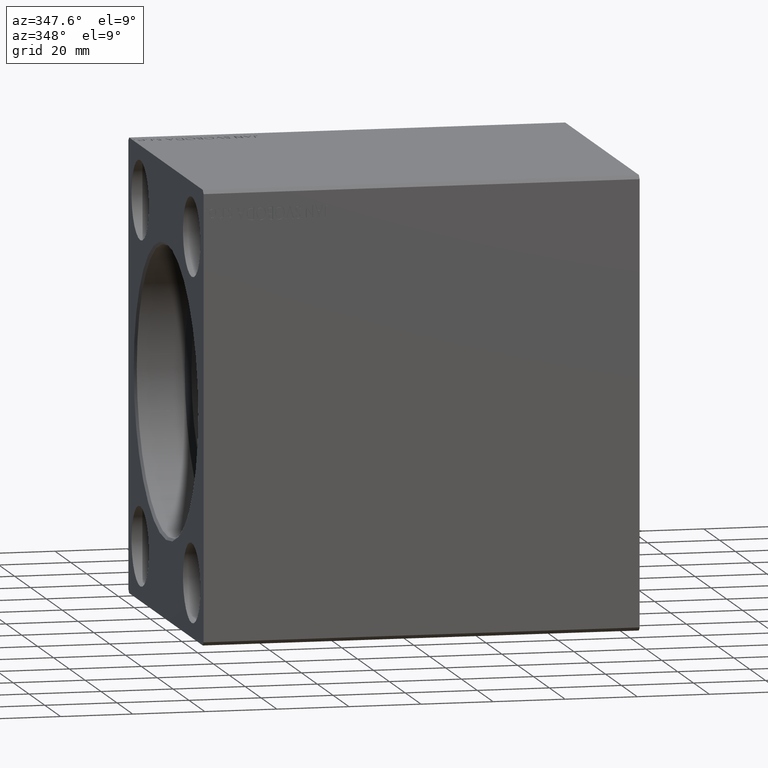
[diagram: clean part render]
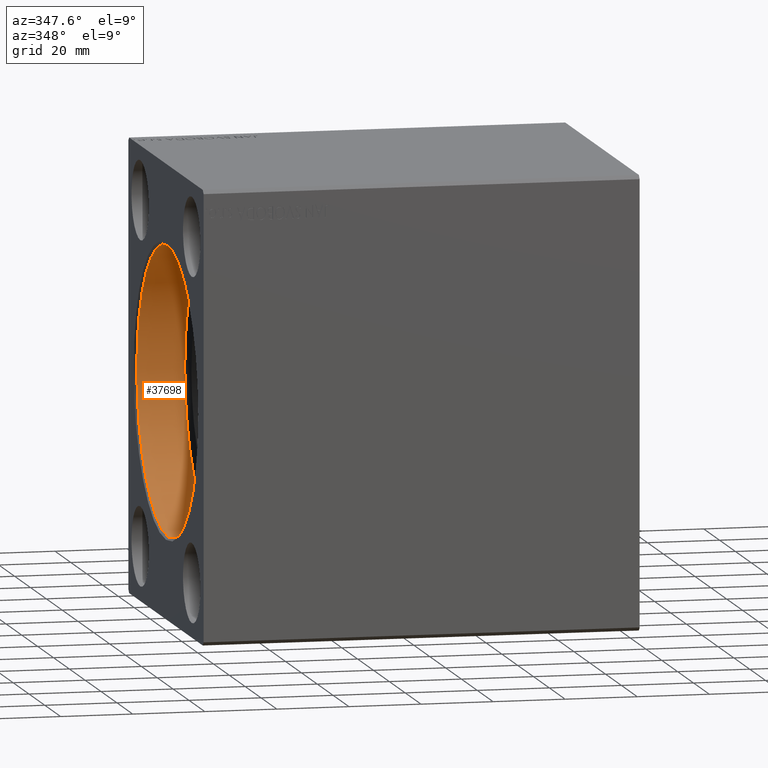
[diagram: same view with one face highlighted and labeled with its STEP entity id]
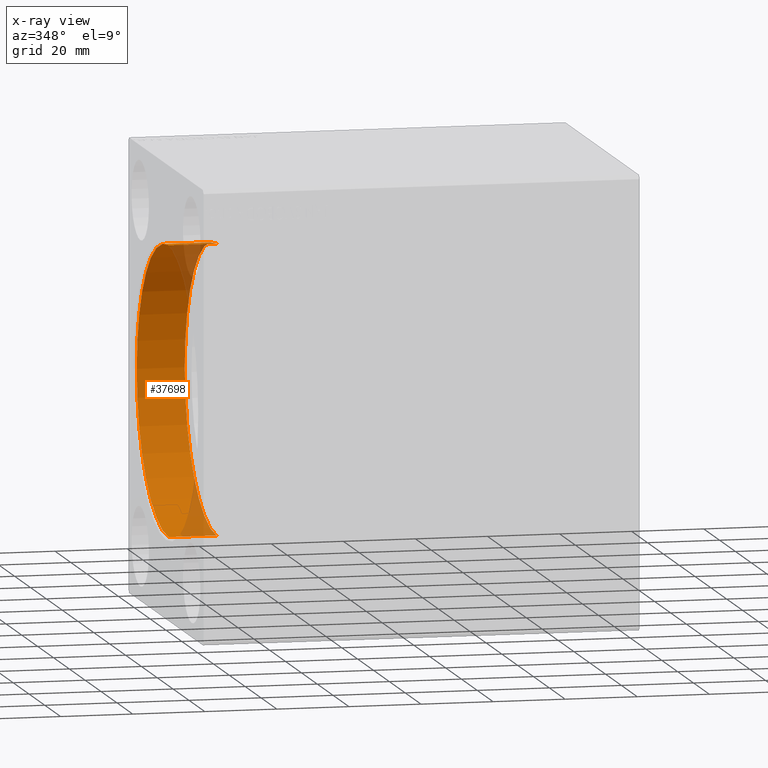
[diagram: x-ray of the same camera — body ghosted, the highlighted face saturated]
A machine part, auxiliary view. The second image highlights one B-rep face of the part: STEP entity #37698.
The next image is the same camera in x-ray: the body ghosted, the highlighted face saturated — about 12% of this face is hidden behind the body in this view.
In plain terms, the highlighted cylindrical surface (partial cylindrical patch) has radius 40 mm, axis along (-1, -0, -0).
Its self-contained STEP definition (entity closure, byte-faithful):
#1651 = CIRCLE ( 'NONE', #6431, 40.00000000000000000 ) ;
#1958 = ORIENTED_EDGE ( 'NONE', *, *, #23725, .T. ) ;
#2208 = DIRECTION ( 'NONE',  ( 0.000000000000000000, 0.000000000000000000, 1.000000000000000000 ) ) ;
#2499 = CARTESIAN_POINT ( 'NONE',  ( 0.7000000000000130562, 0.000000000000000000, 40.00000000000000000 ) ) ;
#6338 = FACE_OUTER_BOUND ( 'NONE', #33952, .T. ) ;
#6431 = AXIS2_PLACEMENT_3D ( 'NONE', #38353, #31713, #11933 ) ;
#9574 = ORIENTED_EDGE ( 'NONE', *, *, #10149, .F. ) ;
#10149 = EDGE_CURVE ( 'NONE', #22025, #37024, #39539, .T. ) ;
#10596 = VERTEX_POINT ( 'NONE', #2499 ) ;
#10897 = EDGE_CURVE ( 'NONE', #26904, #10596, #41941, .T. ) ;
#11933 = DIRECTION ( 'NONE',  ( 0.000000000000000000, 0.000000000000000000, -1.000000000000000000 ) ) ;
#12393 = ORIENTED_EDGE ( 'NONE', *, *, #10897, .T. ) ;
#12569 = CYLINDRICAL_SURFACE ( 'NONE', #26739, 40.00000000000000000 ) ;
#13032 = AXIS2_PLACEMENT_3D ( 'NONE', #41734, #31654, #2208 ) ;
#15578 = CARTESIAN_POINT ( 'NONE',  ( 14.00000000000000000, 0.000000000000000000, 0.000000000000000000 ) ) ;
#16160 = CARTESIAN_POINT ( 'NONE',  ( 14.00000000000000000, 0.000000000000000000, 40.00000000000000000 ) ) ;
#16341 = CARTESIAN_POINT ( 'NONE',  ( 14.00000000000000000, 4.898587196589413026E-15, -40.00000000000000000 ) ) ;
#16474 = CIRCLE ( 'NONE', #13032, 40.00000000000000000 ) ;
#18106 = CARTESIAN_POINT ( 'NONE',  ( 14.00000000000000000, 4.898587196589413026E-15, -40.00000000000000000 ) ) ;
#19324 = VECTOR ( 'NONE', #29260, 1000.000000000000000 ) ;
#19640 = CARTESIAN_POINT ( 'NONE',  ( 0.7000000000000130562, 4.898587196589413026E-15, -40.00000000000000000 ) ) ;
#22025 = VERTEX_POINT ( 'NONE', #18106 ) ;
#22026 = VECTOR ( 'NONE', #36735, 1000.000000000000000 ) ;
#23725 = EDGE_CURVE ( 'NONE', #10596, #37024, #1651, .T. ) ;
#26739 = AXIS2_PLACEMENT_3D ( 'NONE', #15578, #32128, #42005 ) ;
#26904 = VERTEX_POINT ( 'NONE', #39049 ) ;
#29260 = DIRECTION ( 'NONE',  ( -1.000000000000000000, -0.000000000000000000, -0.000000000000000000 ) ) ;
#29394 = ORIENTED_EDGE ( 'NONE', *, *, #39259, .F. ) ;
#31654 = DIRECTION ( 'NONE',  ( -1.000000000000000000, 0.000000000000000000, 0.000000000000000000 ) ) ;
#31713 = DIRECTION ( 'NONE',  ( -1.000000000000000000, 0.000000000000000000, 0.000000000000000000 ) ) ;
#32128 = DIRECTION ( 'NONE',  ( -1.000000000000000000, -0.000000000000000000, -0.000000000000000000 ) ) ;
#33952 = EDGE_LOOP ( 'NONE', ( #9574, #29394, #12393, #1958 ) ) ;
#36735 = DIRECTION ( 'NONE',  ( -1.000000000000000000, -0.000000000000000000, -0.000000000000000000 ) ) ;
#37024 = VERTEX_POINT ( 'NONE', #19640 ) ;
#37698 = ADVANCED_FACE ( 'NONE', ( #6338 ), #12569, .F. ) ;
#38353 = CARTESIAN_POINT ( 'NONE',  ( 0.7000000000000130562, 0.000000000000000000, 0.000000000000000000 ) ) ;
#39049 = CARTESIAN_POINT ( 'NONE',  ( 14.00000000000000000, 0.000000000000000000, 40.00000000000000000 ) ) ;
#39259 = EDGE_CURVE ( 'NONE', #26904, #22025, #16474, .T. ) ;
#39539 = LINE ( 'NONE', #16341, #22026 ) ;
#41734 = CARTESIAN_POINT ( 'NONE',  ( 14.00000000000000000, 0.000000000000000000, 0.000000000000000000 ) ) ;
#41941 = LINE ( 'NONE', #16160, #19324 ) ;
#42005 = DIRECTION ( 'NONE',  ( 0.000000000000000000, 0.000000000000000000, 1.000000000000000000 ) ) ;